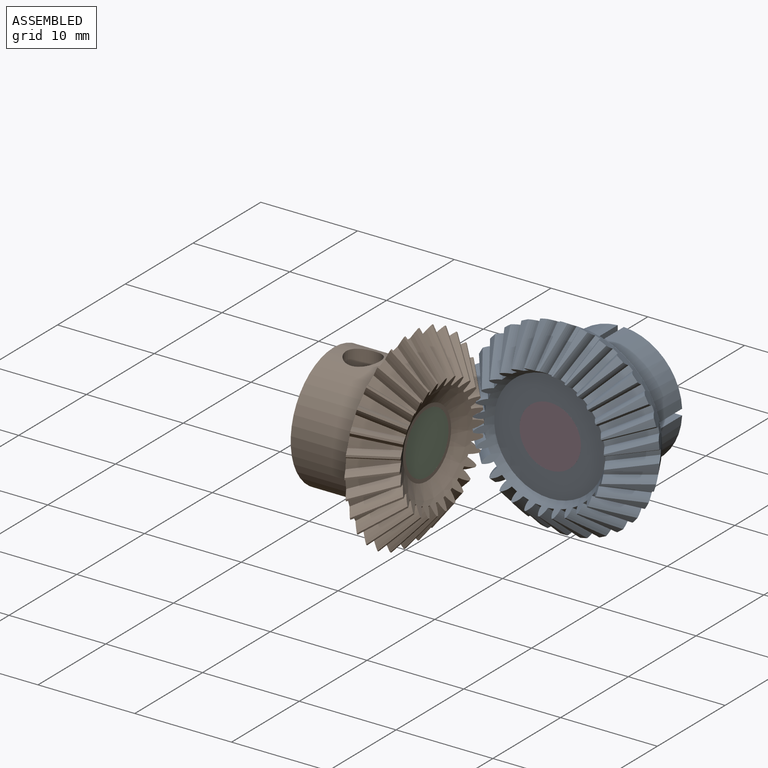
[diagram: assembled view]
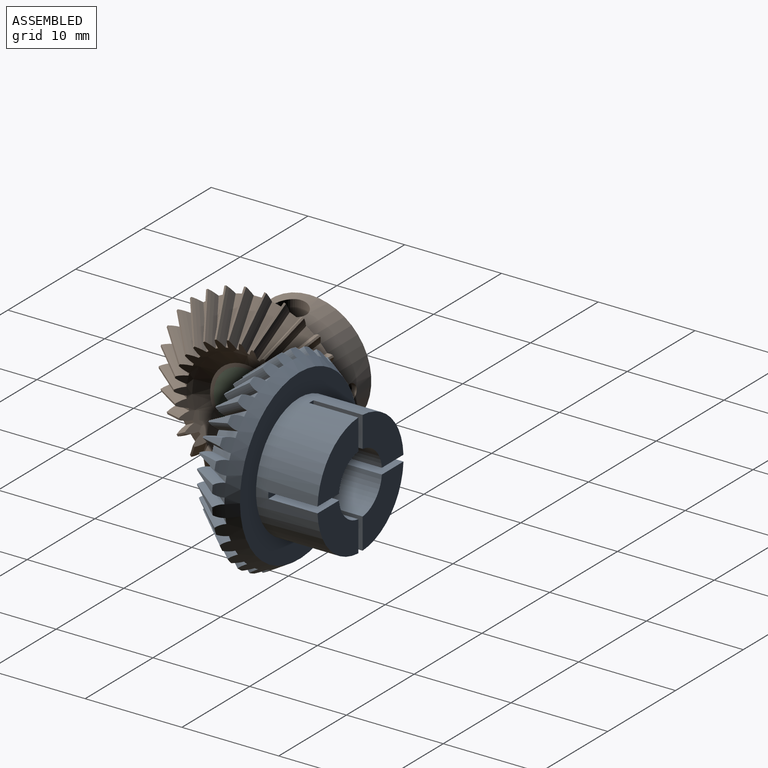
[diagram: assembled view, second angle]
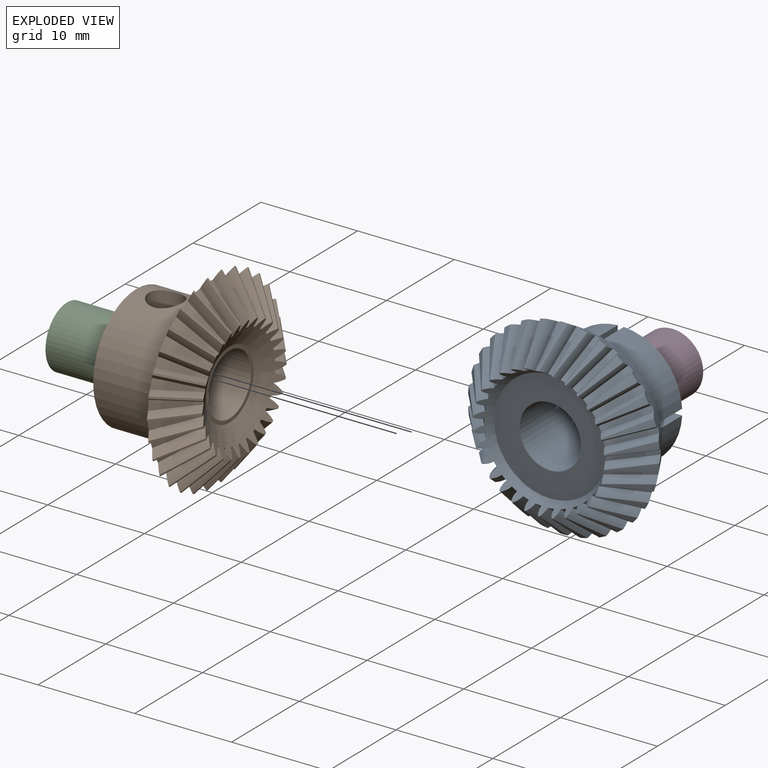
[diagram: exploded view]
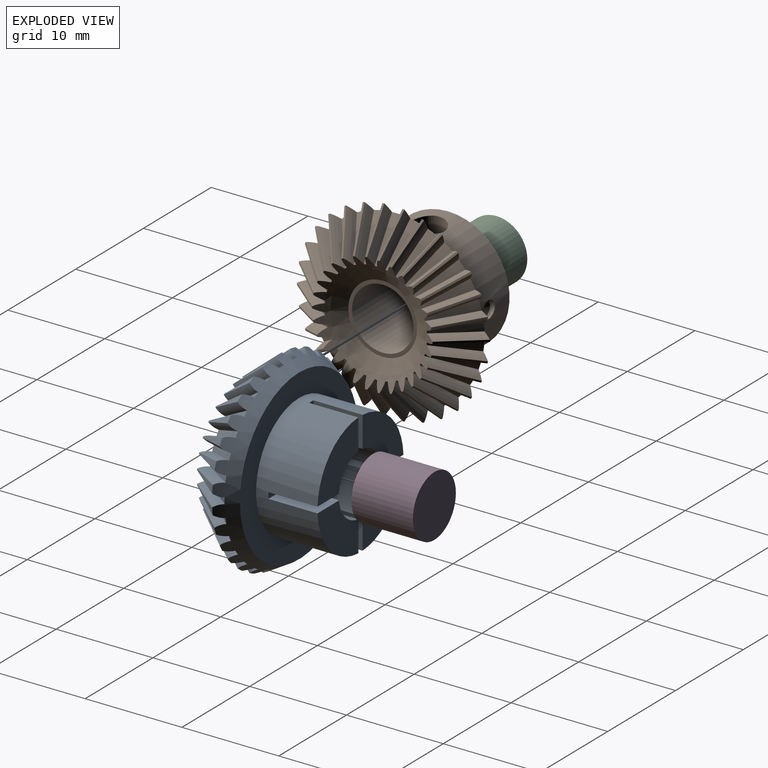
[diagram: exploded view, second angle]
ASSEMBLY  parts=4 mates=2
PART A: 142 faces, bbox 20.3x12.2x20.3 mm
  f0: cone r=8.72mm half-angle=30deg, axis (0,-1,0), area 108.7mm2, adj f4,f8,f9,f10,f11,f12,f13,f14
  f1: cone r=6.8mm half-angle=30deg, axis (0,-1,0), area 49.4mm2, adj f4,f8,f9,f10,f11,f12,f13,f14
  f2: cylinder r=3.17mm len=10.41mm, axis (0,1,0), area 194.7mm2, adj f5,f6,f7,f36,f37,f130,f131,f132
  f3: cylinder r=6.35mm len=12.7mm, axis (0,1,0), area 240.4mm2, adj f5,f6,f7,f36,f39,f130,f131,f132
  f4: cone r=9.91mm half-angle=39.7deg, axis (0,1,0), area 2.1mm2, adj f0,f1,f106,f111
  f5: plane 6.02x6.02mm, normal (0,1,0), area 21.7mm2, adj f2,f3,f137,f139
  f6: plane 6.02x6.02mm, normal (0,1,0), area 21.7mm2, adj f2,f3,f134,f136
  f7: plane 6.02x6.02mm, normal (0,1,0), area 21.7mm2, adj f2,f3,f131,f133
  f8: cone r=9.91mm half-angle=39.7deg, axis (0,1,0), area 2.1mm2, adj f0,f1,f42,f127
  f9: cone r=9.91mm half-angle=39.7deg, axis (0,1,0), area 2.1mm2, adj f0,f1,f124,f129
  f10: cone r=9.91mm half-angle=39.7deg, axis (0,1,0), area 2.1mm2, adj f0,f1,f121,f126
  f11: cone r=9.91mm half-angle=39.7deg, axis (0,1,0), area 2.1mm2, adj f0,f1,f118,f123
  f12: cone r=9.91mm half-angle=39.7deg, axis (0,1,0), area 2.1mm2, adj f0,f1,f115,f120
  f13: cone r=9.91mm half-angle=39.7deg, axis (0,1,0), area 2.1mm2, adj f0,f1,f112,f117
  f14: cone r=9.91mm half-angle=39.7deg, axis (0,1,0), area 2.1mm2, adj f0,f1,f109,f114
  f15: cone r=9.91mm half-angle=39.7deg, axis (0,1,0), area 2.1mm2, adj f0,f1,f103,f108
  f16: cone r=9.91mm half-angle=39.7deg, axis (0,1,0), area 2.1mm2, adj f0,f1,f100,f105
  f17: cone r=9.91mm half-angle=39.7deg, axis (0,1,0), area 2.1mm2, adj f0,f1,f97,f102
  f18: cone r=9.91mm half-angle=39.7deg, axis (0,1,0), area 2.1mm2, adj f0,f1,f94,f99
  f19: cone r=9.91mm half-angle=39.7deg, axis (0,1,0), area 2.1mm2, adj f0,f1,f91,f96
  f20: cone r=9.91mm half-angle=39.7deg, axis (0,1,0), area 2.1mm2, adj f0,f1,f88,f93
  f21: cone r=9.91mm half-angle=39.7deg, axis (0,1,0), area 2.1mm2, adj f0,f1,f85,f90
  f22: cone r=9.91mm half-angle=39.7deg, axis (0,1,0), area 2.1mm2, adj f0,f1,f82,f87
  f23: cone r=9.91mm half-angle=39.7deg, axis (0,1,0), area 2.1mm2, adj f0,f1,f79,f84
  f24: cone r=9.91mm half-angle=39.7deg, axis (0,1,0), area 2.1mm2, adj f0,f1,f76,f81
  f25: cone r=9.91mm half-angle=39.7deg, axis (0,1,0), area 2.1mm2, adj f0,f1,f73,f78
  f26: cone r=9.91mm half-angle=39.7deg, axis (0,1,0), area 2.1mm2, adj f0,f1,f70,f75
  f27: cone r=9.91mm half-angle=39.7deg, axis (0,1,0), area 2.1mm2, adj f0,f1,f67,f72
  f28: cone r=9.91mm half-angle=39.7deg, axis (0,1,0), area 2.1mm2, adj f0,f1,f64,f69
  f29: cone r=9.91mm half-angle=39.7deg, axis (0,1,0), area 2.1mm2, adj f0,f1,f61,f66
  f30: cone r=9.91mm half-angle=39.7deg, axis (0,1,0), area 2.1mm2, adj f0,f1,f58,f63
  f31: cone r=9.91mm half-angle=39.7deg, axis (0,1,0), area 2.1mm2, adj f0,f1,f55,f60
  f32: cone r=9.91mm half-angle=39.7deg, axis (0,1,0), area 2.1mm2, adj f0,f1,f52,f57
  f33: cone r=9.91mm half-angle=39.7deg, axis (0,1,0), area 2.1mm2, adj f0,f1,f49,f54
  f34: cone r=9.91mm half-angle=39.7deg, axis (0,1,0), area 2.1mm2, adj f0,f1,f46,f51
  f35: cone r=9.91mm half-angle=39.7deg, axis (0,1,0), area 2.1mm2, adj f0,f1,f43,f48
  f36: plane 6.02x6.02mm, normal (0,1,0), area 21.7mm2, adj f2,f3,f130,f140
  f37: plane 11.58x11.58mm, normal (0,-1,0), area 73.7mm2, adj f1,f2
  f38: cone r=9.91mm half-angle=39.7deg, axis (0,1,0), area 2.1mm2, adj f0,f1,f41,f45
  f39: plane 17.45x17.45mm, normal (0,1,0), area 112.4mm2, adj f0,f3
  f40: cylinder r=7.38mm len=3.75mm, axis (0.64,-0.77,0), area 3mm2, adj f0,f1,f41,f42
  f41: cylinder r=1.83mm len=4.68mm, axis (0.64,-0.77,0), area 5.2mm2, adj f0,f1,f38,f40
  f42: cylinder r=1.83mm len=4.68mm, axis (0.64,-0.77,0), area 5.2mm2, adj f0,f1,f8,f40
  f43: cylinder r=1.83mm len=4.68mm, axis (0.63,-0.77,0.13), area 5.2mm2, adj f0,f1,f35,f44
  f44: cylinder r=7.38mm len=3.75mm, axis (0.63,-0.77,0.13), area 3mm2, adj f0,f1,f43,f45
  f45: cylinder r=1.83mm len=4.68mm, axis (0.63,-0.77,0.13), area 5.2mm2, adj f0,f1,f38,f44
  f46: cylinder r=1.83mm len=4.68mm, axis (0.58,-0.77,0.26), area 5.2mm2, adj f0,f1,f34,f47
  f47: cylinder r=7.38mm len=3.75mm, axis (0.58,-0.77,0.26), area 3mm2, adj f0,f1,f46,f48
  f48: cylinder r=1.83mm len=4.68mm, axis (0.58,-0.77,0.26), area 5.2mm2, adj f0,f1,f35,f47
  f49: cylinder r=1.83mm len=4.68mm, axis (0.52,-0.77,0.38), area 5.2mm2, adj f0,f1,f33,f50
  f50: cylinder r=7.38mm len=3.75mm, axis (0.52,-0.77,0.38), area 3mm2, adj f0,f1,f49,f51
  f51: cylinder r=1.83mm len=4.68mm, axis (0.52,-0.77,0.38), area 5.2mm2, adj f0,f1,f34,f50
  f52: cylinder r=1.83mm len=4.68mm, axis (0.43,-0.77,0.48), area 5.2mm2, adj f0,f1,f32,f53
  f53: cylinder r=7.38mm len=3.75mm, axis (0.43,-0.77,0.48), area 3mm2, adj f0,f1,f52,f54
  f54: cylinder r=1.83mm len=4.68mm, axis (0.43,-0.77,0.48), area 5.2mm2, adj f0,f1,f33,f53
  f55: cylinder r=1.83mm len=4.68mm, axis (0.32,-0.77,0.55), area 5.2mm2, adj f0,f1,f31,f56
  f56: cylinder r=7.38mm len=3.75mm, axis (0.32,-0.77,0.55), area 3mm2, adj f0,f1,f55,f57
  f57: cylinder r=1.83mm len=4.68mm, axis (0.32,-0.77,0.55), area 5.2mm2, adj f0,f1,f32,f56
  f58: cylinder r=1.83mm len=4.68mm, axis (0.2,-0.77,0.61), area 5.2mm2, adj f0,f1,f30,f59
  f59: cylinder r=7.38mm len=3.75mm, axis (0.2,-0.77,0.61), area 3mm2, adj f0,f1,f58,f60
  f60: cylinder r=1.83mm len=4.68mm, axis (0.2,-0.77,0.61), area 5.2mm2, adj f0,f1,f31,f59
  f61: cylinder r=1.83mm len=4.68mm, axis (0.07,-0.77,0.64), area 5.2mm2, adj f0,f1,f29,f62
  f62: cylinder r=7.38mm len=3.75mm, axis (0.07,-0.77,0.64), area 3mm2, adj f0,f1,f61,f63
  f63: cylinder r=1.83mm len=4.68mm, axis (0.07,-0.77,0.64), area 5.2mm2, adj f0,f1,f30,f62
  f64: cylinder r=1.83mm len=4.68mm, axis (-0.07,-0.77,0.64), area 5.2mm2, adj f0,f1,f28,f65
  f65: cylinder r=7.38mm len=3.75mm, axis (-0.07,-0.77,0.64), area 3mm2, adj f0,f1,f64,f66
  f66: cylinder r=1.83mm len=4.68mm, axis (-0.07,-0.77,0.64), area 5.2mm2, adj f0,f1,f29,f65
  f67: cylinder r=1.83mm len=4.68mm, axis (-0.2,-0.77,0.61), area 5.2mm2, adj f0,f1,f27,f68
  f68: cylinder r=7.38mm len=3.75mm, axis (-0.2,-0.77,0.61), area 3mm2, adj f0,f1,f67,f69
  f69: cylinder r=1.83mm len=4.68mm, axis (-0.2,-0.77,0.61), area 5.2mm2, adj f0,f1,f28,f68
  f70: cylinder r=1.83mm len=4.68mm, axis (-0.32,-0.77,0.55), area 5.2mm2, adj f0,f1,f26,f71
  f71: cylinder r=7.38mm len=3.75mm, axis (-0.32,-0.77,0.55), area 3mm2, adj f0,f1,f70,f72
  f72: cylinder r=1.83mm len=4.68mm, axis (-0.32,-0.77,0.55), area 5.2mm2, adj f0,f1,f27,f71
  f73: cylinder r=1.83mm len=4.68mm, axis (-0.43,-0.77,0.48), area 5.2mm2, adj f0,f1,f25,f74
  f74: cylinder r=7.38mm len=3.75mm, axis (-0.43,-0.77,0.48), area 3mm2, adj f0,f1,f73,f75
  f75: cylinder r=1.83mm len=4.68mm, axis (-0.43,-0.77,0.48), area 5.2mm2, adj f0,f1,f26,f74
  f76: cylinder r=1.83mm len=4.68mm, axis (-0.52,-0.77,0.38), area 5.2mm2, adj f0,f1,f24,f77
  f77: cylinder r=7.38mm len=3.75mm, axis (-0.52,-0.77,0.38), area 3mm2, adj f0,f1,f76,f78
  f78: cylinder r=1.83mm len=4.68mm, axis (-0.52,-0.77,0.38), area 5.2mm2, adj f0,f1,f25,f77
  f79: cylinder r=1.83mm len=4.68mm, axis (-0.58,-0.77,0.26), area 5.2mm2, adj f0,f1,f23,f80
  f80: cylinder r=7.38mm len=3.75mm, axis (-0.58,-0.77,0.26), area 3mm2, adj f0,f1,f79,f81
  f81: cylinder r=1.83mm len=4.68mm, axis (-0.58,-0.77,0.26), area 5.2mm2, adj f0,f1,f24,f80
  f82: cylinder r=1.83mm len=4.68mm, axis (-0.63,-0.77,0.13), area 5.2mm2, adj f0,f1,f22,f83
  f83: cylinder r=7.38mm len=3.75mm, axis (-0.63,-0.77,0.13), area 3mm2, adj f0,f1,f82,f84
  f84: cylinder r=1.83mm len=4.68mm, axis (-0.63,-0.77,0.13), area 5.2mm2, adj f0,f1,f23,f83
  f85: cylinder r=1.83mm len=4.68mm, axis (-0.64,-0.77,0), area 5.2mm2, adj f0,f1,f21,f86
  f86: cylinder r=7.38mm len=3.75mm, axis (-0.64,-0.77,0), area 3mm2, adj f0,f1,f85,f87
  f87: cylinder r=1.83mm len=4.68mm, axis (-0.64,-0.77,0), area 5.2mm2, adj f0,f1,f22,f86
  f88: cylinder r=1.83mm len=4.68mm, axis (-0.63,-0.77,-0.13), area 5.2mm2, adj f0,f1,f20,f89
  f89: cylinder r=7.38mm len=3.75mm, axis (-0.63,-0.77,-0.13), area 3mm2, adj f0,f1,f88,f90
  f90: cylinder r=1.83mm len=4.68mm, axis (-0.63,-0.77,-0.13), area 5.2mm2, adj f0,f1,f21,f89
  f91: cylinder r=1.83mm len=4.68mm, axis (-0.58,-0.77,-0.26), area 5.2mm2, adj f0,f1,f19,f92
  f92: cylinder r=7.38mm len=3.75mm, axis (-0.58,-0.77,-0.26), area 3mm2, adj f0,f1,f91,f93
  f93: cylinder r=1.83mm len=4.68mm, axis (-0.58,-0.77,-0.26), area 5.2mm2, adj f0,f1,f20,f92
  f94: cylinder r=1.83mm len=4.68mm, axis (-0.52,-0.77,-0.38), area 5.2mm2, adj f0,f1,f18,f95
  f95: cylinder r=7.38mm len=3.75mm, axis (-0.52,-0.77,-0.38), area 3mm2, adj f0,f1,f94,f96
  f96: cylinder r=1.83mm len=4.68mm, axis (-0.52,-0.77,-0.38), area 5.2mm2, adj f0,f1,f19,f95
  f97: cylinder r=1.83mm len=4.68mm, axis (-0.43,-0.77,-0.48), area 5.2mm2, adj f0,f1,f17,f98
  f98: cylinder r=7.38mm len=3.75mm, axis (-0.43,-0.77,-0.48), area 3mm2, adj f0,f1,f97,f99
  f99: cylinder r=1.83mm len=4.68mm, axis (-0.43,-0.77,-0.48), area 5.2mm2, adj f0,f1,f18,f98
  f100: cylinder r=1.83mm len=4.68mm, axis (-0.32,-0.77,-0.55), area 5.2mm2, adj f0,f1,f16,f101
  f101: cylinder r=7.38mm len=3.75mm, axis (-0.32,-0.77,-0.55), area 3mm2, adj f0,f1,f100,f102
  f102: cylinder r=1.83mm len=4.68mm, axis (-0.32,-0.77,-0.55), area 5.2mm2, adj f0,f1,f17,f101
  f103: cylinder r=1.83mm len=4.68mm, axis (-0.2,-0.77,-0.61), area 5.2mm2, adj f0,f1,f15,f104
  f104: cylinder r=7.38mm len=3.75mm, axis (-0.2,-0.77,-0.61), area 3mm2, adj f0,f1,f103,f105
  f105: cylinder r=1.83mm len=4.68mm, axis (-0.2,-0.77,-0.61), area 5.2mm2, adj f0,f1,f16,f104
  f106: cylinder r=1.83mm len=4.68mm, axis (-0.07,-0.77,-0.64), area 5.2mm2, adj f0,f1,f4,f107
  f107: cylinder r=7.38mm len=3.75mm, axis (-0.07,-0.77,-0.64), area 3mm2, adj f0,f1,f106,f108
  f108: cylinder r=1.83mm len=4.68mm, axis (-0.07,-0.77,-0.64), area 5.2mm2, adj f0,f1,f15,f107
  f109: cylinder r=1.83mm len=4.68mm, axis (0.07,-0.77,-0.64), area 5.2mm2, adj f0,f1,f14,f110
  f110: cylinder r=7.38mm len=3.75mm, axis (0.07,-0.77,-0.64), area 3mm2, adj f0,f1,f109,f111
  f111: cylinder r=1.83mm len=4.68mm, axis (0.07,-0.77,-0.64), area 5.2mm2, adj f0,f1,f4,f110
  f112: cylinder r=1.83mm len=4.68mm, axis (0.2,-0.77,-0.61), area 5.2mm2, adj f0,f1,f13,f113
  f113: cylinder r=7.38mm len=3.75mm, axis (0.2,-0.77,-0.61), area 3mm2, adj f0,f1,f112,f114
  f114: cylinder r=1.83mm len=4.68mm, axis (0.2,-0.77,-0.61), area 5.2mm2, adj f0,f1,f14,f113
  f115: cylinder r=1.83mm len=4.68mm, axis (0.32,-0.77,-0.55), area 5.2mm2, adj f0,f1,f12,f116
  f116: cylinder r=7.38mm len=3.75mm, axis (0.32,-0.77,-0.55), area 3mm2, adj f0,f1,f115,f117
  f117: cylinder r=1.83mm len=4.68mm, axis (0.32,-0.77,-0.55), area 5.2mm2, adj f0,f1,f13,f116
  f118: cylinder r=1.83mm len=4.68mm, axis (0.43,-0.77,-0.48), area 5.2mm2, adj f0,f1,f11,f119
  f119: cylinder r=7.38mm len=3.75mm, axis (0.43,-0.77,-0.48), area 3mm2, adj f0,f1,f118,f120
  f120: cylinder r=1.83mm len=4.68mm, axis (0.43,-0.77,-0.48), area 5.2mm2, adj f0,f1,f12,f119
  f121: cylinder r=1.83mm len=4.68mm, axis (0.52,-0.77,-0.38), area 5.2mm2, adj f0,f1,f10,f122
  f122: cylinder r=7.38mm len=3.75mm, axis (0.52,-0.77,-0.38), area 3mm2, adj f0,f1,f121,f123
  f123: cylinder r=1.83mm len=4.68mm, axis (0.52,-0.77,-0.38), area 5.2mm2, adj f0,f1,f11,f122
  f124: cylinder r=1.83mm len=4.68mm, axis (0.58,-0.77,-0.26), area 5.2mm2, adj f0,f1,f9,f125
  f125: cylinder r=7.38mm len=3.75mm, axis (0.58,-0.77,-0.26), area 3mm2, adj f0,f1,f124,f126
  f126: cylinder r=1.83mm len=4.68mm, axis (0.58,-0.77,-0.26), area 5.2mm2, adj f0,f1,f10,f125
  f127: cylinder r=1.83mm len=4.68mm, axis (0.63,-0.77,-0.13), area 5.2mm2, adj f0,f1,f8,f128
  f128: cylinder r=7.38mm len=3.75mm, axis (0.63,-0.77,-0.13), area 3mm2, adj f0,f1,f127,f129
  f129: cylinder r=1.83mm len=4.68mm, axis (0.63,-0.77,-0.13), area 5.2mm2, adj f0,f1,f9,f128
  f130: plane 5.08x3.19mm, normal (-1,0,0), area 16.2mm2, adj f2,f3,f36,f132
  f131: plane 5.08x3.19mm, normal (1,0,0), area 16.2mm2, adj f2,f3,f7,f132
  f132: plane 3.19x0.64mm, normal (0,1,0), area 2mm2, adj f2,f3,f130,f131
  f133: plane 5.08x3.19mm, normal (0,0,-1), area 16.2mm2, adj f2,f3,f7,f135
  f134: plane 5.08x3.19mm, normal (0,0,1), area 16.2mm2, adj f2,f3,f6,f135
  f135: plane 3.19x0.64mm, normal (0,1,0), area 2mm2, adj f2,f3,f133,f134
  f136: plane 5.08x3.19mm, normal (1,0,0), area 16.2mm2, adj f2,f3,f6,f138
  f137: plane 5.08x3.19mm, normal (-1,0,0), area 16.2mm2, adj f2,f3,f5,f138
  f138: plane 3.19x0.64mm, normal (0,1,0), area 2mm2, adj f2,f3,f136,f137
  f139: plane 5.08x3.19mm, normal (0,0,1), area 16.2mm2, adj f2,f3,f5,f141
  f140: plane 5.08x3.19mm, normal (0,0,-1), area 16.2mm2, adj f2,f3,f36,f141
  f141: plane 3.19x0.64mm, normal (0,1,0), area 2mm2, adj f2,f3,f139,f140
PART B: 130 faces, bbox 11.4x19.9x19.9 mm
  f0: cone r=0.89mm half-angle=59deg, axis (0,1,0), area 2.9mm2, adj f1
  f1: cylinder r=0.89mm len=1.78mm, axis (0,1,0), area 2.5mm2, adj f0,f3
  f2: cylinder r=1.75mm len=3.51mm, axis (0,0,1), area 35mm2, adj f3,f4
  f3: cylinder r=6.35mm len=12.7mm, axis (-1,0,0), area 241.1mm2, adj f1,f2,f128,f129
  f4: cylinder r=3.17mm len=9.65mm, axis (-1,0,0), area 182.3mm2, adj f2,f127,f128
  f5: cone r=3.55mm half-angle=60deg, axis (1,0,0), area 74.1mm2, adj f7,f8,f9,f10,f11,f12,f13,f14
  f6: cone r=9.04mm half-angle=60deg, axis (1,0,0), area 138.5mm2, adj f7,f8,f9,f10,f11,f12,f13,f14
  f7: cone r=5.29mm half-angle=50.3deg, axis (-1,0,0), area 2.9mm2, adj f5,f6,f53,f54
  f8: cylinder r=7.38mm len=3.71mm, axis (0.64,-0.75,0.16), area 1mm2, adj f5,f6,f96,f97
  f9: cylinder r=7.38mm len=3.51mm, axis (0.64,-0.7,0.31), area 1mm2, adj f5,f6,f94,f95
  f10: cylinder r=7.38mm len=3.15mm, axis (0.64,-0.62,0.45), area 1mm2, adj f5,f6,f92,f93
  f11: cylinder r=7.38mm len=3.12mm, axis (0.64,-0.51,0.57), area 1mm2, adj f5,f6,f90,f91
  f12: cylinder r=7.38mm len=3.35mm, axis (0.64,-0.38,0.67), area 1mm2, adj f5,f6,f88,f89
  f13: cylinder r=7.38mm len=3.63mm, axis (0.64,-0.24,0.73), area 1mm2, adj f5,f6,f86,f87
  f14: cylinder r=7.38mm len=3.75mm, axis (0.64,-0.08,0.76), area 1mm2, adj f5,f6,f84,f85
  f15: cylinder r=7.38mm len=3.75mm, axis (0.64,0.08,0.76), area 1mm2, adj f5,f6,f82,f83
  f16: cylinder r=7.38mm len=3.63mm, axis (0.64,0.24,0.73), area 1mm2, adj f5,f6,f80,f81
  f17: cylinder r=7.38mm len=3.35mm, axis (0.64,0.38,0.67), area 1mm2, adj f5,f6,f78,f79
  f18: cylinder r=7.38mm len=3.12mm, axis (0.64,0.51,0.57), area 1mm2, adj f5,f6,f76,f77
  f19: cylinder r=7.38mm len=3.15mm, axis (0.64,0.62,0.45), area 1mm2, adj f5,f6,f74,f75
  f20: cylinder r=7.38mm len=3.51mm, axis (0.64,0.7,0.31), area 1mm2, adj f5,f6,f72,f73
  f21: cylinder r=7.38mm len=3.71mm, axis (0.64,0.75,0.16), area 1mm2, adj f5,f6,f70,f71
  f22: cylinder r=7.38mm len=3.75mm, axis (0.64,0.77,0), area 1mm2, adj f5,f6,f68,f69
  f23: cylinder r=7.38mm len=3.71mm, axis (0.64,0.75,-0.16), area 1mm2, adj f5,f6,f66,f67
  f24: cylinder r=7.38mm len=3.51mm, axis (0.64,0.7,-0.31), area 1mm2, adj f5,f6,f64,f65
  f25: cylinder r=7.38mm len=3.15mm, axis (0.64,0.62,-0.45), area 1mm2, adj f5,f6,f62,f63
  f26: cylinder r=7.38mm len=3.12mm, axis (0.64,0.51,-0.57), area 1mm2, adj f5,f6,f60,f61
  f27: cylinder r=7.38mm len=3.35mm, axis (0.64,0.38,-0.67), area 1mm2, adj f5,f6,f58,f59
  f28: cylinder r=7.38mm len=3.63mm, axis (0.64,0.24,-0.73), area 1mm2, adj f5,f6,f56,f57
  f29: cylinder r=7.38mm len=3.75mm, axis (0.64,0.08,-0.76), area 1mm2, adj f5,f6,f54,f55
  f30: cylinder r=7.38mm len=3.75mm, axis (0.64,-0.08,-0.76), area 1mm2, adj f5,f6,f52,f53
  f31: cylinder r=7.38mm len=3.63mm, axis (0.64,-0.24,-0.73), area 1mm2, adj f5,f6,f50,f51
  f32: cylinder r=7.38mm len=3.35mm, axis (0.64,-0.38,-0.67), area 1mm2, adj f5,f6,f48,f49
  f33: cylinder r=7.38mm len=3.12mm, axis (0.64,-0.51,-0.57), area 1mm2, adj f5,f6,f46,f47
  f34: cylinder r=7.38mm len=3.15mm, axis (0.64,-0.62,-0.45), area 1mm2, adj f5,f6,f44,f45
  f35: cylinder r=7.38mm len=3.51mm, axis (0.64,-0.7,-0.31), area 1mm2, adj f5,f6,f42,f43
  f36: cylinder r=7.38mm len=3.71mm, axis (0.64,-0.75,-0.16), area 1mm2, adj f5,f6,f40,f41
  f37: cylinder r=7.38mm len=3.75mm, axis (0.64,-0.77,0), area 1mm2, adj f5,f6,f38,f39
  f38: cylinder r=3.19mm len=4.69mm, axis (0.64,-0.77,0), area 5.2mm2, adj f5,f6,f37,f126
  f39: cylinder r=3.19mm len=4.69mm, axis (0.64,-0.77,0), area 5.2mm2, adj f5,f6,f37,f98
  f40: cylinder r=3.19mm len=4.52mm, axis (0.64,-0.75,-0.16), area 5.2mm2, adj f5,f6,f36,f98
  f41: cylinder r=3.19mm len=4.65mm, axis (0.64,-0.75,-0.16), area 5.2mm2, adj f5,f6,f36,f99
  f42: cylinder r=3.19mm len=4.15mm, axis (0.64,-0.7,-0.31), area 5.2mm2, adj f5,f6,f35,f99
  f43: cylinder r=3.19mm len=4.42mm, axis (0.64,-0.7,-0.31), area 5.2mm2, adj f5,f6,f35,f100
  f44: cylinder r=3.19mm len=4.14mm, axis (0.64,-0.62,-0.45), area 5.2mm2, adj f5,f6,f34,f100
  f45: cylinder r=3.19mm len=4.14mm, axis (0.64,-0.62,-0.45), area 5.2mm2, adj f5,f6,f34,f101
  f46: cylinder r=3.19mm len=4.14mm, axis (0.64,-0.51,-0.57), area 5.2mm2, adj f5,f6,f33,f101
  f47: cylinder r=3.19mm len=4.14mm, axis (0.64,-0.51,-0.57), area 5.2mm2, adj f5,f6,f33,f102
  f48: cylinder r=3.19mm len=4.22mm, axis (0.64,-0.38,-0.67), area 5.2mm2, adj f5,f6,f32,f102
  f49: cylinder r=3.19mm len=4.14mm, axis (0.64,-0.38,-0.67), area 5.2mm2, adj f5,f6,f32,f103
  f50: cylinder r=3.19mm len=4.56mm, axis (0.64,-0.24,-0.73), area 5.2mm2, adj f5,f6,f31,f103
  f51: cylinder r=3.19mm len=4.36mm, axis (0.64,-0.24,-0.73), area 5.2mm2, adj f5,f6,f31,f104
  f52: cylinder r=3.19mm len=4.7mm, axis (0.64,-0.08,-0.76), area 5.2mm2, adj f5,f6,f30,f104
  f53: cylinder r=3.19mm len=4.63mm, axis (0.64,-0.08,-0.76), area 5.2mm2, adj f5,f6,f7,f30
  f54: cylinder r=3.19mm len=4.63mm, axis (0.64,0.08,-0.76), area 5.2mm2, adj f5,f6,f7,f29
  f55: cylinder r=3.19mm len=4.7mm, axis (0.64,0.08,-0.76), area 5.2mm2, adj f5,f6,f29,f105
  f56: cylinder r=3.19mm len=4.36mm, axis (0.64,0.24,-0.73), area 5.2mm2, adj f5,f6,f28,f105
  f57: cylinder r=3.19mm len=4.56mm, axis (0.64,0.24,-0.73), area 5.2mm2, adj f5,f6,f28,f106
  f58: cylinder r=3.19mm len=4.14mm, axis (0.64,0.38,-0.67), area 5.2mm2, adj f5,f6,f27,f106
  f59: cylinder r=3.19mm len=4.22mm, axis (0.64,0.38,-0.67), area 5.2mm2, adj f5,f6,f27,f107
  f60: cylinder r=3.19mm len=4.14mm, axis (0.64,0.51,-0.57), area 5.2mm2, adj f5,f6,f26,f107
  f61: cylinder r=3.19mm len=4.14mm, axis (0.64,0.51,-0.57), area 5.2mm2, adj f5,f6,f26,f108
  f62: cylinder r=3.19mm len=4.14mm, axis (0.64,0.62,-0.45), area 5.2mm2, adj f5,f6,f25,f108
  f63: cylinder r=3.19mm len=4.14mm, axis (0.64,0.62,-0.45), area 5.2mm2, adj f5,f6,f25,f109
  f64: cylinder r=3.19mm len=4.42mm, axis (0.64,0.7,-0.31), area 5.2mm2, adj f5,f6,f24,f109
  f65: cylinder r=3.19mm len=4.15mm, axis (0.64,0.7,-0.31), area 5.2mm2, adj f5,f6,f24,f110
  f66: cylinder r=3.19mm len=4.65mm, axis (0.64,0.75,-0.16), area 5.2mm2, adj f5,f6,f23,f110
  f67: cylinder r=3.19mm len=4.52mm, axis (0.64,0.75,-0.16), area 5.2mm2, adj f5,f6,f23,f111
  f68: cylinder r=3.19mm len=4.69mm, axis (0.64,0.77,0), area 5.2mm2, adj f5,f6,f22,f111
  f69: cylinder r=3.19mm len=4.69mm, axis (0.64,0.77,0), area 5.2mm2, adj f5,f6,f22,f112
  f70: cylinder r=3.19mm len=4.52mm, axis (0.64,0.75,0.16), area 5.2mm2, adj f5,f6,f21,f112
  f71: cylinder r=3.19mm len=4.65mm, axis (0.64,0.75,0.16), area 5.2mm2, adj f5,f6,f21,f113
  f72: cylinder r=3.19mm len=4.15mm, axis (0.64,0.7,0.31), area 5.2mm2, adj f5,f6,f20,f113
  f73: cylinder r=3.19mm len=4.42mm, axis (0.64,0.7,0.31), area 5.2mm2, adj f5,f6,f20,f114
  f74: cylinder r=3.19mm len=4.14mm, axis (0.64,0.62,0.45), area 5.2mm2, adj f5,f6,f19,f114
  f75: cylinder r=3.19mm len=4.14mm, axis (0.64,0.62,0.45), area 5.2mm2, adj f5,f6,f19,f115
  f76: cylinder r=3.19mm len=4.14mm, axis (0.64,0.51,0.57), area 5.2mm2, adj f5,f6,f18,f115
  f77: cylinder r=3.19mm len=4.14mm, axis (0.64,0.51,0.57), area 5.2mm2, adj f5,f6,f18,f116
  f78: cylinder r=3.19mm len=4.22mm, axis (0.64,0.38,0.67), area 5.2mm2, adj f5,f6,f17,f116
  f79: cylinder r=3.19mm len=4.14mm, axis (0.64,0.38,0.67), area 5.2mm2, adj f5,f6,f17,f117
  f80: cylinder r=3.19mm len=4.56mm, axis (0.64,0.24,0.73), area 5.2mm2, adj f5,f6,f16,f117
  f81: cylinder r=3.19mm len=4.36mm, axis (0.64,0.24,0.73), area 5.2mm2, adj f5,f6,f16,f118
  f82: cylinder r=3.19mm len=4.7mm, axis (0.64,0.08,0.76), area 5.2mm2, adj f5,f6,f15,f118
  f83: cylinder r=3.19mm len=4.63mm, axis (0.64,0.08,0.76), area 5.2mm2, adj f5,f6,f15,f119
  f84: cylinder r=3.19mm len=4.63mm, axis (0.64,-0.08,0.76), area 5.2mm2, adj f5,f6,f14,f119
  f85: cylinder r=3.19mm len=4.7mm, axis (0.64,-0.08,0.76), area 5.2mm2, adj f5,f6,f14,f120
  f86: cylinder r=3.19mm len=4.36mm, axis (0.64,-0.24,0.73), area 5.2mm2, adj f5,f6,f13,f120
  f87: cylinder r=3.19mm len=4.56mm, axis (0.64,-0.24,0.73), area 5.2mm2, adj f5,f6,f13,f121
  f88: cylinder r=3.19mm len=4.14mm, axis (0.64,-0.38,0.67), area 5.2mm2, adj f5,f6,f12,f121
  f89: cylinder r=3.19mm len=4.22mm, axis (0.64,-0.38,0.67), area 5.2mm2, adj f5,f6,f12,f122
  f90: cylinder r=3.19mm len=4.14mm, axis (0.64,-0.51,0.57), area 5.2mm2, adj f5,f6,f11,f122
  f91: cylinder r=3.19mm len=4.14mm, axis (0.64,-0.51,0.57), area 5.2mm2, adj f5,f6,f11,f123
  f92: cylinder r=3.19mm len=4.14mm, axis (0.64,-0.62,0.45), area 5.2mm2, adj f5,f6,f10,f123
  f93: cylinder r=3.19mm len=4.14mm, axis (0.64,-0.62,0.45), area 5.2mm2, adj f5,f6,f10,f124
  f94: cylinder r=3.19mm len=4.42mm, axis (0.64,-0.7,0.31), area 5.2mm2, adj f5,f6,f9,f124
  f95: cylinder r=3.19mm len=4.15mm, axis (0.64,-0.7,0.31), area 5.2mm2, adj f5,f6,f9,f125
  f96: cylinder r=3.19mm len=4.65mm, axis (0.64,-0.75,0.16), area 5.2mm2, adj f5,f6,f8,f125
  f97: cylinder r=3.19mm len=4.52mm, axis (0.64,-0.75,0.16), area 5.2mm2, adj f5,f6,f8,f126
  f98: cone r=5.29mm half-angle=50.3deg, axis (-1,0,0), area 2.9mm2, adj f5,f6,f39,f40
  f99: cone r=5.29mm half-angle=50.3deg, axis (-1,0,0), area 2.9mm2, adj f5,f6,f41,f42
  f100: cone r=5.29mm half-angle=50.3deg, axis (-1,0,0), area 2.9mm2, adj f5,f6,f43,f44
  f101: cone r=5.29mm half-angle=50.3deg, axis (-1,0,0), area 2.9mm2, adj f5,f6,f45,f46
  f102: cone r=5.29mm half-angle=50.3deg, axis (-1,0,0), area 2.9mm2, adj f5,f6,f47,f48
  f103: cone r=5.29mm half-angle=50.3deg, axis (-1,0,0), area 2.9mm2, adj f5,f6,f49,f50
  f104: cone r=5.29mm half-angle=50.3deg, axis (-1,0,0), area 2.9mm2, adj f5,f6,f51,f52
  f105: cone r=5.29mm half-angle=50.3deg, axis (-1,0,0), area 2.9mm2, adj f5,f6,f55,f56
  f106: cone r=5.29mm half-angle=50.3deg, axis (-1,0,0), area 2.9mm2, adj f5,f6,f57,f58
  f107: cone r=5.29mm half-angle=50.3deg, axis (-1,0,0), area 2.9mm2, adj f5,f6,f59,f60
  f108: cone r=5.29mm half-angle=50.3deg, axis (-1,0,0), area 2.9mm2, adj f5,f6,f61,f62
  f109: cone r=5.29mm half-angle=50.3deg, axis (-1,0,0), area 2.9mm2, adj f5,f6,f63,f64
  f110: cone r=5.29mm half-angle=50.3deg, axis (-1,0,0), area 2.9mm2, adj f5,f6,f65,f66
  f111: cone r=5.29mm half-angle=50.3deg, axis (-1,0,0), area 2.9mm2, adj f5,f6,f67,f68
  f112: cone r=5.29mm half-angle=50.3deg, axis (-1,0,0), area 2.9mm2, adj f5,f6,f69,f70
  f113: cone r=5.29mm half-angle=50.3deg, axis (-1,0,0), area 2.9mm2, adj f5,f6,f71,f72
  f114: cone r=5.29mm half-angle=50.3deg, axis (-1,0,0), area 2.9mm2, adj f5,f6,f73,f74
  f115: cone r=5.29mm half-angle=50.3deg, axis (-1,0,0), area 2.9mm2, adj f5,f6,f75,f76
  f116: cone r=5.29mm half-angle=50.3deg, axis (-1,0,0), area 2.9mm2, adj f5,f6,f77,f78
  f117: cone r=5.29mm half-angle=50.3deg, axis (-1,0,0), area 2.9mm2, adj f5,f6,f79,f80
  f118: cone r=5.29mm half-angle=50.3deg, axis (-1,0,0), area 2.9mm2, adj f5,f6,f81,f82
  f119: cone r=5.29mm half-angle=50.3deg, axis (-1,0,0), area 2.9mm2, adj f5,f6,f83,f84
  f120: cone r=5.29mm half-angle=50.3deg, axis (-1,0,0), area 2.9mm2, adj f5,f6,f85,f86
  f121: cone r=5.29mm half-angle=50.3deg, axis (-1,0,0), area 2.9mm2, adj f5,f6,f87,f88
  f122: cone r=5.29mm half-angle=50.3deg, axis (-1,0,0), area 2.9mm2, adj f5,f6,f89,f90
  f123: cone r=5.29mm half-angle=50.3deg, axis (-1,0,0), area 2.9mm2, adj f5,f6,f91,f92
  f124: cone r=5.29mm half-angle=50.3deg, axis (-1,0,0), area 2.9mm2, adj f5,f6,f93,f94
  f125: cone r=5.29mm half-angle=50.3deg, axis (-1,0,0), area 2.9mm2, adj f5,f6,f95,f96
  f126: cone r=5.29mm half-angle=50.3deg, axis (-1,0,0), area 2.9mm2, adj f5,f6,f38,f97
  f127: plane 7.11x7.11mm, normal (1,0,0), area 8.1mm2, adj f4,f5
  f128: plane 12.7x12.7mm, normal (-1,0,0), area 95.1mm2, adj f3,f4
  f129: plane 13.97x13.97mm, normal (-1,0,0), area 26.6mm2, adj f3,f6
PART C: 3 faces, bbox 6.4x6.3x6.3 mm
  f0: cylinder r=3.17mm len=6.35mm, axis (1,0,0), area 126.6mm2, adj f1,f2
  f1: plane 6.35x6.35mm, normal (-1,0,0), area 31.6mm2, adj f0
  f2: plane 6.35x6.35mm, normal (1,0,0), area 31.6mm2, adj f0
PART D: 3 faces, bbox 6.3x6.4x6.3 mm
  f0: cylinder r=3.17mm len=6.35mm, axis (0,-1,0), area 126.6mm2, adj f1,f2
  f1: plane 6.35x6.35mm, normal (0,1,0), area 31.6mm2, adj f0
  f2: plane 6.35x6.35mm, normal (0,-1,0), area 31.6mm2, adj f0
PLACE A at identity
PLACE B at identity
PLACE C at identity fixed
PLACE D at identity
MATE revolute A.f0 <-> D.f0  axis (0,-1,0) through (0,7.04,0)mm
MATE revolute B.f3 <-> C.f0  axis (1,0,0) through (-7.8,0,0)mm
